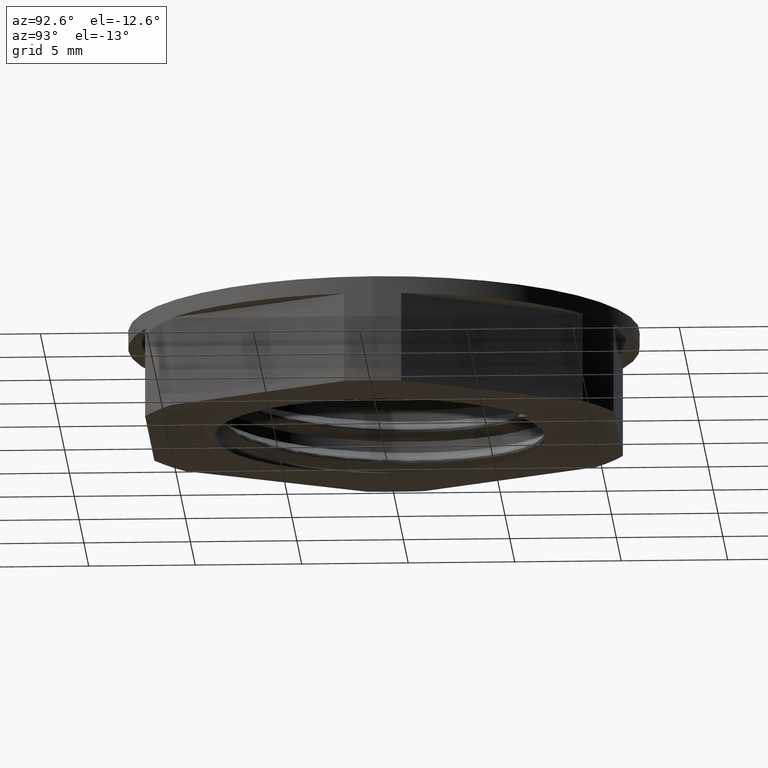
[diagram: clean part render]
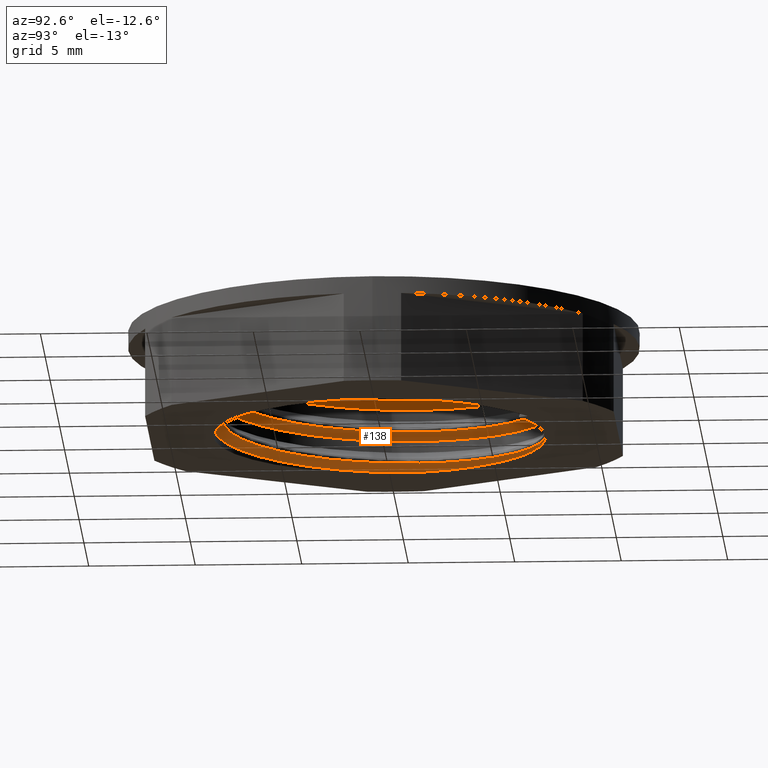
[diagram: same view with one face highlighted and labeled with its STEP entity id]
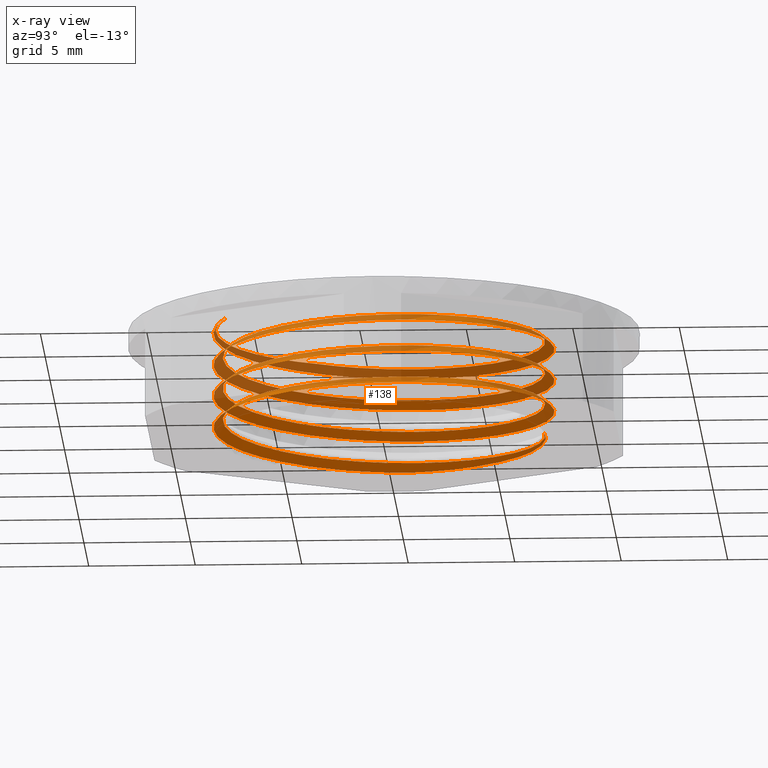
[diagram: x-ray of the same camera — body ghosted, the highlighted face saturated]
A machine part, auxiliary view. The second image highlights one B-rep face of the part: STEP entity #138.
The next image is the same camera in x-ray: the body ghosted, the highlighted face saturated — about 49% of this face is hidden behind the body in this view.
In plain terms, the highlighted face is a freeform B-spline surface patch.
Its self-contained STEP definition (entity closure, byte-faithful):
#138 = ADVANCED_FACE ( 'NONE', ( #2408 ), #2512, .F. ) ;
#157 = EDGE_CURVE ( 'NONE', #2510, #1493, #2534, .T. ) ;
#167 = EDGE_CURVE ( 'NONE', #2504, #2501, #2532, .T. ) ;
#177 = EDGE_CURVE ( 'NONE', #1521, #1501, #2528, .T. ) ;
#178 = EDGE_CURVE ( 'NONE', #2501, #2510, #2540, .T. ) ;
#182 = EDGE_CURVE ( 'NONE', #1519, #2504, #2515, .T. ) ;
#183 = EDGE_CURVE ( 'NONE', #1516, #1519, #2525, .T. ) ;
#195 = EDGE_CURVE ( 'NONE', #1503, #1494, #262, .T. ) ;
#206 = EDGE_CURVE ( 'NONE', #1493, #1521, #2530, .T. ) ;
#233 = EDGE_CURVE ( 'NONE', #1501, #1494, #2518, .T. ) ;
#239 = EDGE_CURVE ( 'NONE', #1516, #1500, #266, .T. ) ;
#247 = EDGE_CURVE ( 'NONE', #1503, #1500, #2529, .T. ) ;
#262 = B_SPLINE_CURVE_WITH_KNOTS ( 'NONE', 3,
 ( #574, #558, #559, #554, #553, #569, #543, #538, #577, #568, #571, #561, #560, #557, #547, #552, #545, #536, #563, #565, #564, #572 ),
 .UNSPECIFIED., .F., .F.,
 ( 4, 2, 2, 2, 2, 2, 2, 2, 2, 2, 4 ),
 ( 2.168404344971008900E-019, 0.001496155060673636600, 0.002244232591010455500, 0.002992310121347274000, 0.004488465182020910100, 0.005984620242694546300, 0.006732697773031366500, 0.007480775303368185000, 0.008976930364041822000, 0.01047308542471545700, 0.01196924048538909600 ),
 .UNSPECIFIED. ) ;
#266 = B_SPLINE_CURVE_WITH_KNOTS ( 'NONE', 3,
 ( #697, #761, #780, #763, #764, #774, #747, #726, #727, #728, #819, #818, #795, #834, #809, #811, #796, #830, #797, #789, #793, #815, #831, #835 ),
 .UNSPECIFIED., .F., .F.,
 ( 4, 2, 2, 2, 2, 2, 2, 2, 2, 2, 2, 4 ),
 ( 0.007449147005863418000, 0.008945742665780616000, 0.009694040495739214600, 0.01044233832569781500, 0.01193893398561501200, 0.01343552964553220900, 0.01493212530544940500, 0.01568042313540800300, 0.01642872096536660300, 0.01792531662528380100, 0.01867361445524240100, 0.01942191228520099800 ),
 .UNSPECIFIED. ) ;
#343 = CARTESIAN_POINT ( 'NONE',  ( 7.999999999999998200, -7.631494539278074400E-015, 3.772517976318679800 ) ) ;
#346 = CARTESIAN_POINT ( 'NONE',  ( 7.999999999999998200, -2.143593539448982900, 3.707437213536682700 ) ) ;
#391 = CARTESIAN_POINT ( 'NONE',  ( -7.999999999999998200, 3.366835826152092000E-015, 3.022517976318681600 ) ) ;
#396 = CARTESIAN_POINT ( 'NONE',  ( 6.928203230275508800, -4.000000000000000000, 3.646791597187232900 ) ) ;
#397 = CARTESIAN_POINT ( 'NONE',  ( 5.271348980783127300, -6.869755740857204500, 3.553041597187232900 ) ) ;
#402 = CARTESIAN_POINT ( 'NONE',  ( -6.869755740857203600, -5.271348980783130900, 3.178041597187232900 ) ) ;
#405 = CARTESIAN_POINT ( 'NONE',  ( -1.130244259142797500, -8.585057479767890200, 3.365541597187232900 ) ) ;
#407 = CARTESIAN_POINT ( 'NONE',  ( -7.727406610312546500, -2.070552360820167200, 3.084291597187233800 ) ) ;
#413 = CARTESIAN_POINT ( 'NONE',  ( -8.000000000000000000, -1.053219980699168000, 3.054494355450129400 ) ) ;
#416 = CARTESIAN_POINT ( 'NONE',  ( -3.999999999999999100, -6.928203230275508800, 3.271791597187233300 ) ) ;
#422 = CARTESIAN_POINT ( 'NONE',  ( -7.999999999999998200, 3.366835826152092000E-015, 3.022517976318681600 ) ) ;
#423 = CARTESIAN_POINT ( 'NONE',  ( 2.070552360820166800, -7.727406610312546500, 3.459291597187233300 ) ) ;
#435 = CARTESIAN_POINT ( 'NONE',  ( 3.380397377103104600, -7.250718141872256200, 5.000000000000000900 ) ) ;
#436 = CARTESIAN_POINT ( 'NONE',  ( 6.869755740857205400, 5.271348980783125500, 3.928041597187232900 ) ) ;
#437 = CARTESIAN_POINT ( 'NONE',  ( -1.130244259142797500, -8.585057479767890200, 0.3655415971872375000 ) ) ;
#438 = CARTESIAN_POINT ( 'NONE',  ( -8.000000000000001800, -1.053219980699163600, 0.05449435545013322400 ) ) ;
#440 = CARTESIAN_POINT ( 'NONE',  ( -6.928203230275509700, 3.999999999999998200, 4.396791597187231600 ) ) ;
#441 = CARTESIAN_POINT ( 'NONE',  ( 8.000000000000001800, -5.611393043586822200E-016, 0.7725179763186846800 ) ) ;
#444 = CARTESIAN_POINT ( 'NONE',  ( 2.070552360820166800, -7.727406610312546500, 0.4592915971872373900 ) ) ;
#445 = CARTESIAN_POINT ( 'NONE',  ( -3.999999999999999100, -6.928203230275508800, 0.2717915971872376700 ) ) ;
#446 = CARTESIAN_POINT ( 'NONE',  ( -6.869755740857203600, -5.271348980783130900, 0.1780415971872377800 ) ) ;
#448 = CARTESIAN_POINT ( 'NONE',  ( 8.000000000000000000, 1.053219980699168000, 2.304494355450130700 ) ) ;
#449 = CARTESIAN_POINT ( 'NONE',  ( 6.869755740857205400, 5.271348980783125500, 2.428041597187234200 ) ) ;
#450 = CARTESIAN_POINT ( 'NONE',  ( 6.928203230275508800, -4.000000000000000000, 0.6467915971872371100 ) ) ;
#452 = CARTESIAN_POINT ( 'NONE',  ( 3.999999999999998200, 6.928203230275509700, 2.521791597187234200 ) ) ;
#453 = CARTESIAN_POINT ( 'NONE',  ( 7.727406610312546500, 2.070552360820165900, 2.334291597187235100 ) ) ;
#454 = CARTESIAN_POINT ( 'NONE',  ( 8.000000000000000000, -2.143593539448979300, 0.7074372135366873100 ) ) ;
#455 = CARTESIAN_POINT ( 'NONE',  ( -5.271348980783130900, 6.869755740857202800, 2.803041597187233800 ) ) ;
#460 = CARTESIAN_POINT ( 'NONE',  ( -8.000000000000000000, 2.143593539448979800, 2.957437213536684400 ) ) ;
#461 = CARTESIAN_POINT ( 'NONE',  ( 5.271348980783127300, -6.869755740857204500, 0.5530415971872372200 ) ) ;
#467 = CARTESIAN_POINT ( 'NONE',  ( -7.999999999999998200, -1.571190052204309300E-015, 4.522517976318679800 ) ) ;
#468 = CARTESIAN_POINT ( 'NONE',  ( -2.070552360820167200, 7.727406610312546500, 4.209291597187232400 ) ) ;
#474 = CARTESIAN_POINT ( 'NONE',  ( -8.000000000000000000, 2.143593539448979800, 4.457437213536682200 ) ) ;
#476 = CARTESIAN_POINT ( 'NONE',  ( -7.727406610312546500, -2.070552360820167200, 0.08429159718723790200 ) ) ;
#477 = CARTESIAN_POINT ( 'NONE',  ( -5.271348980783130900, 6.869755740857202800, 4.303041597187232400 ) ) ;
#478 = CARTESIAN_POINT ( 'NONE',  ( 7.999999999999998200, 1.795645773947782100E-015, 2.272517976318682900 ) ) ;
#479 = CARTESIAN_POINT ( 'NONE',  ( 1.130244259142794100, 8.585057479767888500, 4.115541597187233300 ) ) ;
#480 = CARTESIAN_POINT ( 'NONE',  ( 7.727406610312546500, 2.070552360820165900, 3.834291597187232000 ) ) ;
#481 = CARTESIAN_POINT ( 'NONE',  ( 1.130244259142794100, 8.585057479767888500, 2.615541597187234200 ) ) ;
#482 = CARTESIAN_POINT ( 'NONE',  ( -6.928203230275509700, 3.999999999999998200, 2.896791597187233800 ) ) ;
#483 = CARTESIAN_POINT ( 'NONE',  ( -2.070552360820167200, 7.727406610312546500, 2.709291597187234700 ) ) ;
#485 = CARTESIAN_POINT ( 'NONE',  ( -8.000000000000001800, 1.010050747845627900E-015, 0.02251797631868561800 ) ) ;
#486 = CARTESIAN_POINT ( 'NONE',  ( 3.999999999999998200, 6.928203230275509700, 4.021791597187232400 ) ) ;
#500 = CARTESIAN_POINT ( 'NONE',  ( 2.746318199655144900, -7.546335699524175500, 4.979084497178331700 ) ) ;
#508 = CARTESIAN_POINT ( 'NONE',  ( 8.000000000000001800, 1.053219980699163600, 3.804494355450127600 ) ) ;
#509 = CARTESIAN_POINT ( 'NONE',  ( -7.999999999999998200, -1.571190052204309300E-015, 4.522517976318679800 ) ) ;
#517 = CARTESIAN_POINT ( 'NONE',  ( -1.130244259142797500, -8.585057479767890200, 4.865541597187232400 ) ) ;
#522 = CARTESIAN_POINT ( 'NONE',  ( -6.869755740857203600, -5.271348980783130900, 4.678041597187231600 ) ) ;
#523 = CARTESIAN_POINT ( 'NONE',  ( 7.999999999999998200, -7.631494539278074400E-015, 3.772517976318679800 ) ) ;
#524 = CARTESIAN_POINT ( 'NONE',  ( -8.000000000000000000, -1.053219980699168000, 4.554494355450127200 ) ) ;
#529 = CARTESIAN_POINT ( 'NONE',  ( -7.727406610312546500, -2.070552360820167200, 4.584291597187230700 ) ) ;
#530 = CARTESIAN_POINT ( 'NONE',  ( -3.999999999999999100, -6.928203230275508800, 4.771791597187231600 ) ) ;
#532 = CARTESIAN_POINT ( 'NONE',  ( 2.070552360820166800, -7.727406610312546500, 4.959291597187231600 ) ) ;
#536 = CARTESIAN_POINT ( 'NONE',  ( -7.283014948492168900, 3.124800871535717800, 1.127400515843926400E-014 ) ) ;
#538 = CARTESIAN_POINT ( 'NONE',  ( -3.003853177334058000, 7.098275823220528300, 3.862811491854184300E-018 ) ) ;
#543 = CARTESIAN_POINT ( 'NONE',  ( -2.293219016427007900, 7.318002226821902500, 3.862811491854158900E-018 ) ) ;
#545 = CARTESIAN_POINT ( 'NONE',  ( -6.804143251527945000, 3.995388682104982400, 1.127400515843927200E-014 ) ) ;
#547 = CARTESIAN_POINT ( 'NONE',  ( -6.047141742188511400, 4.981976319172869900, 3.636604634013293300E-017 ) ) ;
#552 = CARTESIAN_POINT ( 'NONE',  ( -6.525865857771565400, 4.405759385610811500, 3.636604634013366600E-017 ) ) ;
#553 = CARTESIAN_POINT ( 'NONE',  ( -1.563137871701153000, 7.480903411029371100, -1.059273437301605100E-016 ) ) ;
#554 = CARTESIAN_POINT ( 'NONE',  ( -1.313767306003189100, 7.519419386386485500, 5.186773145984986800E-018 ) ) ;
#557 = CARTESIAN_POINT ( 'NONE',  ( -5.876671654762140500, 5.168041631374149100, -3.358860403868636900E-016 ) ) ;
#558 = CARTESIAN_POINT ( 'NONE',  ( -0.06890114016801685000, 7.599007192534878100, -2.747084396898558700E-015 ) ) ;
#559 = CARTESIAN_POINT ( 'NONE',  ( -0.5678109952904520900, 7.596782043444950000, 5.186773145985150100E-018 ) ) ;
#560 = CARTESIAN_POINT ( 'NONE',  ( -5.522193639116971500, 5.519238664571912700, -3.358860403868635900E-016 ) ) ;
#561 = CARTESIAN_POINT ( 'NONE',  ( -5.337497578335818300, 5.685327971127282600, -5.488339656673960100E-016 ) ) ;
#563 = CARTESIAN_POINT ( 'NONE',  ( -7.484432842580131900, 2.660268892600717200, 2.235741482730175900E-015 ) ) ;
#564 = CARTESIAN_POINT ( 'NONE',  ( -7.901946618155189800, 1.231718332958290100, 2.112524390960294600E-017 ) ) ;
#565 = CARTESIAN_POINT ( 'NONE',  ( -7.792663550340240200, 1.715191947250777900, 2.235741482730164400E-015 ) ) ;
#568 = CARTESIAN_POINT ( 'NONE',  ( -4.347669749951560200, 6.432504493744768400, 3.420771519155539300E-017 ) ) ;
#569 = CARTESIAN_POINT ( 'NONE',  ( -2.052536911971464500, 7.380128703295911300, -1.059273437301605200E-016 ) ) ;
#571 = CARTESIAN_POINT ( 'NONE',  ( -4.761470099540506600, 6.155618970242478800, -5.488339656673953200E-016 ) ) ;
#572 = CARTESIAN_POINT ( 'NONE',  ( -7.965960808858826100, 0.7372030871647475800, 2.112524390960568500E-017 ) ) ;
#574 = CARTESIAN_POINT ( 'NONE',  ( 0.4316424328562513700, 7.551019650600586000, -2.743567003304576900E-015 ) ) ;
#577 = CARTESIAN_POINT ( 'NONE',  ( -3.462358938085114500, 6.907229153375300100, 3.420771519155516500E-017 ) ) ;
#585 = CARTESIAN_POINT ( 'NONE',  ( -5.271348980783130900, 6.869755740857202800, 1.303041597187236000 ) ) ;
#588 = CARTESIAN_POINT ( 'NONE',  ( 6.869755740857205400, 5.271348980783125500, 0.9280415971872367800 ) ) ;
#590 = CARTESIAN_POINT ( 'NONE',  ( -2.070552360820167200, 7.727406610312546500, 1.209291597187236200 ) ) ;
#591 = CARTESIAN_POINT ( 'NONE',  ( -6.928203230275509700, 3.999999999999998200, 1.396791597187236000 ) ) ;
#599 = CARTESIAN_POINT ( 'NONE',  ( -7.999999999999998200, -1.571190052204309300E-015, 1.522517976318683600 ) ) ;
#601 = CARTESIAN_POINT ( 'NONE',  ( 3.999999999999998200, 6.928203230275509700, 1.021791597187236400 ) ) ;
#602 = CARTESIAN_POINT ( 'NONE',  ( 7.727406610312546500, 2.070552360820165900, 0.8342915971872370000 ) ) ;
#604 = CARTESIAN_POINT ( 'NONE',  ( 8.000000000000000000, 1.053219980699168000, 0.8044943554501324800 ) ) ;
#617 = CARTESIAN_POINT ( 'NONE',  ( 1.130244259142794100, 8.585057479767888500, 1.115541597187236400 ) ) ;
#621 = CARTESIAN_POINT ( 'NONE',  ( -8.000000000000000000, 2.143593539448979800, 1.457437213536686600 ) ) ;
#623 = CARTESIAN_POINT ( 'NONE',  ( 8.000000000000001800, -5.611393043586822200E-016, 0.7725179763186846800 ) ) ;
#697 = CARTESIAN_POINT ( 'NONE',  ( 3.380397377103104600, -7.250718141872256200, 5.000000000000000900 ) ) ;
#710 = CARTESIAN_POINT ( 'NONE',  ( -8.000000000000000000, 0.3693873965947360700, 0.01130315732897119900 ) ) ;
#718 = CARTESIAN_POINT ( 'NONE',  ( -7.965960808858826100, 0.7372030871647475800, 2.112524390960568500E-017 ) ) ;
#724 = CARTESIAN_POINT ( 'NONE',  ( -8.000000000000001800, 1.010050747845627900E-015, 0.02251797631868561800 ) ) ;
#726 = CARTESIAN_POINT ( 'NONE',  ( -0.02113457311991283700, -7.892987881900662500, 5.000000000000001800 ) ) ;
#727 = CARTESIAN_POINT ( 'NONE',  ( -0.5154500681739552200, -7.857649201061852800, 4.999999999999999100 ) ) ;
#728 = CARTESIAN_POINT ( 'NONE',  ( -1.493976001695340700, -7.693989080043779800, 4.999999999999998200 ) ) ;
#747 = CARTESIAN_POINT ( 'NONE',  ( 0.7280813151640759300, -7.874751120325229600, 5.000000000000000000 ) ) ;
#761 = CARTESIAN_POINT ( 'NONE',  ( 2.918137280282340700, -7.446508930559772000, 4.999999999999998200 ) ) ;
#763 = CARTESIAN_POINT ( 'NONE',  ( 1.719162260954199200, -7.755258668475802300, 4.999999999999998200 ) ) ;
#764 = CARTESIAN_POINT ( 'NONE',  ( 1.474511388444287300, -7.796752592532356200, 5.000000000000001800 ) ) ;
#774 = CARTESIAN_POINT ( 'NONE',  ( 0.9796416312068494400, -7.856513744303824400, 5.000000000000001800 ) ) ;
#780 = CARTESIAN_POINT ( 'NONE',  ( 2.444923655188406800, -7.596607600565005400, 5.000000000000000000 ) ) ;
#789 = CARTESIAN_POINT ( 'NONE',  ( -6.120665605493872600, -4.531189356865803000, 5.000000000000001800 ) ) ;
#793 = CARTESIAN_POINT ( 'NONE',  ( -6.259245378709978900, -4.320789143092509800, 5.000000000000000000 ) ) ;
#795 = CARTESIAN_POINT ( 'NONE',  ( -3.361175542009774600, -6.999415194475302500, 5.000000000000000000 ) ) ;
#796 = CARTESIAN_POINT ( 'NONE',  ( -4.798652972574292800, -6.009647844926909100, 4.999999999999998200 ) ) ;
#797 = CARTESIAN_POINT ( 'NONE',  ( -5.677123663725812900, -5.137178216354779900, 5.000000000000000900 ) ) ;
#809 = CARTESIAN_POINT ( 'NONE',  ( -4.207540638302366400, -6.469891748706196200, 4.999999999999999100 ) ) ;
#811 = CARTESIAN_POINT ( 'NONE',  ( -4.607519098872729500, -6.168893023760262800, 4.999999999999997300 ) ) ;
#815 = CARTESIAN_POINT ( 'NONE',  ( -6.513753732184320600, -3.889360533429889100, 5.000000000000000000 ) ) ;
#818 = CARTESIAN_POINT ( 'NONE',  ( -2.915433473454930500, -7.215728835449159100, 5.000000000000000000 ) ) ;
#819 = CARTESIAN_POINT ( 'NONE',  ( -1.983051722891422200, -7.563351686247499700, 5.000000000000000000 ) ) ;
#830 = CARTESIAN_POINT ( 'NONE',  ( -5.346239580676456900, -5.506416625567496200, 5.000000000000000900 ) ) ;
#831 = CARTESIAN_POINT ( 'NONE',  ( -6.630305831619591700, -3.667516089799856900, 5.000000000000003600 ) ) ;
#834 = CARTESIAN_POINT ( 'NONE',  ( -3.999061223344074100, -6.611078732909906100, 5.000000000000000900 ) ) ;
#835 = CARTESIAN_POINT ( 'NONE',  ( -6.736039356138998200, -3.439474777657888000, 5.000000000000000000 ) ) ;
#897 = CARTESIAN_POINT ( 'NONE',  ( 6.494793031637767600, 4.983629974513345200, 7.294437239629096400 ) ) ;
#898 = CARTESIAN_POINT ( 'NONE',  ( 2.138009371283960300, -7.979159600690128900, 0.2405938094024579200 ) ) ;
#899 = CARTESIAN_POINT ( 'NONE',  ( -5.443085494229302800, 7.093567122623539900, 1.084343809402457100 ) ) ;
#900 = CARTESIAN_POINT ( 'NONE',  ( 5.443085494229298300, -7.093567122623540800, 3.334343809402453600 ) ) ;
#901 = CARTESIAN_POINT ( 'NONE',  ( 4.130316937142458400, 7.153918786493011200, 3.803093809402452700 ) ) ;
#902 = CARTESIAN_POINT ( 'NONE',  ( 5.443085494229298300, -7.093567122623540800, 1.834343809402455300 ) ) ;
#903 = CARTESIAN_POINT ( 'NONE',  ( 1.167066751661378900, 8.864752078756719600, 2.396843809402454500 ) ) ;
#904 = CARTESIAN_POINT ( 'NONE',  ( 1.167066751661378900, 8.864752078756719600, 3.896843809402453100 ) ) ;
#905 = CARTESIAN_POINT ( 'NONE',  ( -2.138009371283960700, 7.979159600690128900, -0.5094061905975410000 ) ) ;
#906 = CARTESIAN_POINT ( 'NONE',  ( -8.864752078756719600, 1.167066751661379500, 2.771843809402454500 ) ) ;
#907 = CARTESIAN_POINT ( 'NONE',  ( 4.130316937142458400, 7.153918786493011200, 0.8030938094024571100 ) ) ;
#908 = CARTESIAN_POINT ( 'NONE',  ( -2.138009371283960700, 7.979159600690128900, 3.990593809402452700 ) ) ;
#909 = CARTESIAN_POINT ( 'NONE',  ( -2.138009371283960700, 7.979159600690128900, 2.490593809402454900 ) ) ;
#910 = CARTESIAN_POINT ( 'NONE',  ( -4.130316937142459300, -7.153918786493010300, 1.553093809402456000 ) ) ;
#911 = CARTESIAN_POINT ( 'NONE',  ( 3.781673338404516000, 6.550050359745237700, 7.388187239629095500 ) ) ;
#912 = CARTESIAN_POINT ( 'NONE',  ( 4.130316937142458400, 7.153918786493011200, 2.303093809402454900 ) ) ;
#913 = CARTESIAN_POINT ( 'NONE',  ( -7.153918786493011200, 4.130316937142459300, 4.178093809402452200 ) ) ;
#914 = CARTESIAN_POINT ( 'NONE',  ( 4.130316937142458400, 7.153918786493011200, -0.6969061905975407800 ) ) ;
#915 = CARTESIAN_POINT ( 'NONE',  ( 1.167066751661378900, 8.864752078756719600, -0.6031561905975408900 ) ) ;
#916 = CARTESIAN_POINT ( 'NONE',  ( 7.093567122623541700, 5.443085494229297400, 3.709343809402453100 ) ) ;
#917 = CARTESIAN_POINT ( 'NONE',  ( -4.130316937142459300, -7.153918786493010300, 0.05309380940245818400 ) ) ;
#918 = CARTESIAN_POINT ( 'NONE',  ( -8.864752078756719600, 1.167066751661379500, 1.271843809402456900 ) ) ;
#919 = CARTESIAN_POINT ( 'NONE',  ( -7.979159600690128900, -2.138009371283960700, 1.365593809402456200 ) ) ;
#920 = CARTESIAN_POINT ( 'NONE',  ( 7.979159600690128900, 2.138009371283959400, 2.115593809402455300 ) ) ;
#921 = CARTESIAN_POINT ( 'NONE',  ( 7.153918786493010300, -4.130316937142460200, 3.428093809402453100 ) ) ;
#922 = CARTESIAN_POINT ( 'NONE',  ( -7.153918786493011200, 4.130316937142459300, 2.678093809402454000 ) ) ;
#923 = CARTESIAN_POINT ( 'NONE',  ( -7.979159600690128900, -2.138009371283960700, 2.865593809402454500 ) ) ;
#924 = CARTESIAN_POINT ( 'NONE',  ( -1.167066751661381700, -8.864752078756719600, 3.146843809402453600 ) ) ;
#925 = CARTESIAN_POINT ( 'NONE',  ( 8.864752078756719600, -1.167066751661376200, 3.521843809402453600 ) ) ;
#926 = CARTESIAN_POINT ( 'NONE',  ( 7.979159600690128900, 2.138009371283959400, 3.615593809402452700 ) ) ;
#927 = CARTESIAN_POINT ( 'NONE',  ( -1.167066751661381700, -8.864752078756719600, 0.1468438094024580300 ) ) ;
#928 = CARTESIAN_POINT ( 'NONE',  ( -8.864752078756719600, 1.167066751661379500, 4.271843809402452200 ) ) ;
#929 = CARTESIAN_POINT ( 'NONE',  ( -7.093567122623539900, -5.443085494229302800, 2.959343809402453100 ) ) ;
#930 = CARTESIAN_POINT ( 'NONE',  ( -7.979159600690128900, -2.138009371283960700, 4.365593809402451300 ) ) ;
#931 = CARTESIAN_POINT ( 'NONE',  ( -5.443085494229302800, 7.093567122623539900, 4.084343809402452200 ) ) ;
#932 = CARTESIAN_POINT ( 'NONE',  ( -7.093567122623539900, -5.443085494229302800, 4.459343809402451300 ) ) ;
#933 = CARTESIAN_POINT ( 'NONE',  ( -5.443085494229302800, 7.093567122623539900, -0.4156561905975412200 ) ) ;
#934 = CARTESIAN_POINT ( 'NONE',  ( -1.167066751661381700, -8.864752078756719600, 4.646843809402451300 ) ) ;
#935 = CARTESIAN_POINT ( 'NONE',  ( -4.130316937142459300, -7.153918786493010300, 4.553093809402451300 ) ) ;
#936 = CARTESIAN_POINT ( 'NONE',  ( 2.138009371283960300, -7.979159600690128900, 4.740593809402451300 ) ) ;
#937 = CARTESIAN_POINT ( 'NONE',  ( 5.443085494229298300, -7.093567122623540800, 4.834343809402451300 ) ) ;
#938 = CARTESIAN_POINT ( 'NONE',  ( 7.153918786493010300, -4.130316937142460200, 4.928093809402451300 ) ) ;
#939 = CARTESIAN_POINT ( 'NONE',  ( 8.864752078756719600, -1.167066751661376200, 5.021843809402451300 ) ) ;
#940 = CARTESIAN_POINT ( 'NONE',  ( -7.979159600690128900, -2.138009371283960700, -0.1344061905975415500 ) ) ;
#941 = CARTESIAN_POINT ( 'NONE',  ( 5.443085494229298300, -7.093567122623540800, 0.3343438094024577800 ) ) ;
#942 = CARTESIAN_POINT ( 'NONE',  ( 8.864752078756719600, -1.167066751661376200, 0.5218438094024574500 ) ) ;
#943 = CARTESIAN_POINT ( 'NONE',  ( 7.979159600690128900, 2.138009371283959400, 0.6155938094024573400 ) ) ;
#944 = CARTESIAN_POINT ( 'NONE',  ( -7.093567122623539900, -5.443085494229302800, 1.459343809402456000 ) ) ;
#945 = CARTESIAN_POINT ( 'NONE',  ( 1.167066751661378900, 8.864752078756719600, 0.8968438094024571100 ) ) ;
#946 = CARTESIAN_POINT ( 'NONE',  ( -1.167066751661381700, -8.864752078756719600, 1.646843809402456200 ) ) ;
#947 = CARTESIAN_POINT ( 'NONE',  ( 7.153918786493010300, -4.130316937142460200, 0.4280938094024576700 ) ) ;
#948 = CARTESIAN_POINT ( 'NONE',  ( 7.093567122623541700, 5.443085494229297400, 0.7093438094024572300 ) ) ;
#949 = CARTESIAN_POINT ( 'NONE',  ( 2.138009371283960300, -7.979159600690128900, 1.740593809402455800 ) ) ;
#950 = CARTESIAN_POINT ( 'NONE',  ( 8.864752078756719600, -1.167066751661376200, 2.021843809402455300 ) ) ;
#951 = CARTESIAN_POINT ( 'NONE',  ( -5.443085494229302800, 7.093567122623539900, 2.584343809402454000 ) ) ;
#952 = CARTESIAN_POINT ( 'NONE',  ( -7.153918786493011200, 4.130316937142459300, 1.178093809402456700 ) ) ;
#953 = CARTESIAN_POINT ( 'NONE',  ( 7.153918786493010300, -4.130316937142460200, 1.928093809402455600 ) ) ;
#954 = CARTESIAN_POINT ( 'NONE',  ( -7.153918786493011200, 4.130316937142459300, -0.3219061905975412800 ) ) ;
#955 = CARTESIAN_POINT ( 'NONE',  ( -2.138009371283960700, 7.979159600690128900, 0.9905938094024568900 ) ) ;
#956 = CARTESIAN_POINT ( 'NONE',  ( -7.093567122623539900, -5.443085494229302800, -0.04065619059754167800 ) ) ;
#957 = CARTESIAN_POINT ( 'NONE',  ( 7.093567122623541700, 5.443085494229297400, 2.209343809402454900 ) ) ;
#958 = CARTESIAN_POINT ( 'NONE',  ( -4.130316937142459300, -7.153918786493010300, 3.053093809402453600 ) ) ;
#959 = CARTESIAN_POINT ( 'NONE',  ( -8.864752078756719600, 1.167066751661379500, -0.2281561905975414100 ) ) ;
#960 = CARTESIAN_POINT ( 'NONE',  ( 2.138009371283960300, -7.979159600690128900, 3.240593809402454000 ) ) ;
#962 = CARTESIAN_POINT ( 'NONE',  ( 7.153918786493010300, -4.130316937142460200, 6.428093809402448700 ) ) ;
#967 = CARTESIAN_POINT ( 'NONE',  ( -7.093567122623539900, -5.443085494229302800, 5.959343809402449600 ) ) ;
#970 = CARTESIAN_POINT ( 'NONE',  ( 4.130316937142458400, 7.153918786493011200, 6.803093809402448700 ) ) ;
#971 = CARTESIAN_POINT ( 'NONE',  ( -4.130316937142459300, -7.153918786493010300, 6.053093809402449600 ) ) ;
#973 = CARTESIAN_POINT ( 'NONE',  ( 4.130316937142458400, 7.153918786493011200, 5.303093809402450500 ) ) ;
#974 = CARTESIAN_POINT ( 'NONE',  ( -7.153918786493011200, 4.130316937142459300, 5.678093809402449600 ) ) ;
#975 = CARTESIAN_POINT ( 'NONE',  ( -7.979159600690128900, -2.138009371283960700, 5.865593809402449600 ) ) ;
#976 = CARTESIAN_POINT ( 'NONE',  ( 8.864752078756719600, -1.167066751661376200, 6.521843809402449600 ) ) ;
#979 = CARTESIAN_POINT ( 'NONE',  ( 2.138009371283960300, -7.979159600690128900, 6.240593809402449600 ) ) ;
#984 = CARTESIAN_POINT ( 'NONE',  ( 5.443085494229298300, -7.093567122623540800, 6.334343809402448700 ) ) ;
#985 = CARTESIAN_POINT ( 'NONE',  ( -2.138009371283960700, 7.979159600690128900, 5.490593809402450500 ) ) ;
#989 = CARTESIAN_POINT ( 'NONE',  ( -5.443085494229302800, 7.093567122623539900, 5.584343809402449600 ) ) ;
#990 = CARTESIAN_POINT ( 'NONE',  ( 7.979159600690128900, 2.138009371283959400, 6.615593809402447800 ) ) ;
#997 = CARTESIAN_POINT ( 'NONE',  ( 7.093567122623541700, 5.443085494229297400, 5.209343809402449600 ) ) ;
#998 = CARTESIAN_POINT ( 'NONE',  ( 7.979159600690128900, 2.138009371283959400, 5.115593809402450500 ) ) ;
#999 = CARTESIAN_POINT ( 'NONE',  ( 7.093567122623541700, 5.443085494229297400, 6.709343809402449600 ) ) ;
#1007 = CARTESIAN_POINT ( 'NONE',  ( -1.167066751661381700, -8.864752078756719600, 6.146843809402449600 ) ) ;
#1009 = CARTESIAN_POINT ( 'NONE',  ( -8.864752078756719600, 1.167066751661379500, 5.771843809402449600 ) ) ;
#1013 = CARTESIAN_POINT ( 'NONE',  ( 1.167066751661378900, 8.864752078756719600, 5.396843809402450500 ) ) ;
#1072 = CARTESIAN_POINT ( 'NONE',  ( -1.130244259142797500, -8.585057479767890200, 1.865541597187235800 ) ) ;
#1073 = CARTESIAN_POINT ( 'NONE',  ( -6.869755740857203600, -5.271348980783130900, 1.678041597187235600 ) ) ;
#1074 = CARTESIAN_POINT ( 'NONE',  ( -8.000000000000000000, -1.053219980699168000, 1.554494355450131100 ) ) ;
#1076 = CARTESIAN_POINT ( 'NONE',  ( 6.928203230275508800, -4.000000000000000000, 2.146791597187234700 ) ) ;
#1077 = CARTESIAN_POINT ( 'NONE',  ( 2.070552360820166800, -7.727406610312546500, 1.959291597187235100 ) ) ;
#1078 = CARTESIAN_POINT ( 'NONE',  ( -7.999999999999998200, -1.571190052204309300E-015, 1.522517976318683600 ) ) ;
#1087 = CARTESIAN_POINT ( 'NONE',  ( 5.271348980783127300, -6.869755740857204500, 2.053041597187234700 ) ) ;
#1089 = CARTESIAN_POINT ( 'NONE',  ( -3.999999999999999100, -6.928203230275508800, 1.771791597187235600 ) ) ;
#1097 = CARTESIAN_POINT ( 'NONE',  ( -7.727406610312546500, -2.070552360820167200, 1.584291597187235800 ) ) ;
#1102 = CARTESIAN_POINT ( 'NONE',  ( 7.999999999999998200, 1.795645773947782100E-015, 2.272517976318682900 ) ) ;
#1108 = CARTESIAN_POINT ( 'NONE',  ( 8.000000000000000000, -2.143593539448979300, 2.207437213536684900 ) ) ;
#1493 = VERTEX_POINT ( 'NONE', #2561 ) ;
#1494 = VERTEX_POINT ( 'NONE', #2562 ) ;
#1500 = VERTEX_POINT ( 'NONE', #2587 ) ;
#1501 = VERTEX_POINT ( 'NONE', #2592 ) ;
#1503 = VERTEX_POINT ( 'NONE', #2577 ) ;
#1516 = VERTEX_POINT ( 'NONE', #2616 ) ;
#1519 = VERTEX_POINT ( 'NONE', #2647 ) ;
#1521 = VERTEX_POINT ( 'NONE', #2643 ) ;
#1540 = ORIENTED_EDGE ( 'NONE', *, *, #233, .T. ) ;
#1556 = ORIENTED_EDGE ( 'NONE', *, *, #206, .T. ) ;
#1582 = ORIENTED_EDGE ( 'NONE', *, *, #157, .T. ) ;
#1591 = ORIENTED_EDGE ( 'NONE', *, *, #182, .T. ) ;
#1603 = ORIENTED_EDGE ( 'NONE', *, *, #178, .T. ) ;
#1609 = ORIENTED_EDGE ( 'NONE', *, *, #195, .F. ) ;
#1611 = ORIENTED_EDGE ( 'NONE', *, *, #183, .T. ) ;
#1612 = ORIENTED_EDGE ( 'NONE', *, *, #167, .T. ) ;
#1640 = ORIENTED_EDGE ( 'NONE', *, *, #247, .T. ) ;
#1659 = ORIENTED_EDGE ( 'NONE', *, *, #177, .T. ) ;
#1660 = ORIENTED_EDGE ( 'NONE', *, *, #239, .F. ) ;
#1732 = EDGE_LOOP ( 'NONE', ( #1660, #1611, #1591, #1612, #1603, #1582, #1556, #1659, #1540, #1609, #1640 ) ) ;
#1771 = CARTESIAN_POINT ( 'NONE',  ( 8.116470744977126700, -1.068553645171266100, 7.106937239629097300 ) ) ;
#2063 = CARTESIAN_POINT ( 'NONE',  ( 7.305631888307445400, 1.957538164671038600, 7.200687239629095500 ) ) ;
#2401 = CARTESIAN_POINT ( 'NONE',  ( 4.983629974513347000, -6.494793031637767600, 0.9194372396291044000 ) ) ;
#2402 = CARTESIAN_POINT ( 'NONE',  ( 6.550050359745236900, -3.781673338404517400, 1.013187239629104400 ) ) ;
#2404 = CARTESIAN_POINT ( 'NONE',  ( 8.116470744977126700, -1.068553645171266100, 1.106937239629104400 ) ) ;
#2408 = FACE_OUTER_BOUND ( 'NONE', #1732, .T. ) ;
#2409 = CARTESIAN_POINT ( 'NONE',  ( -1.957538164671039900, 7.305631888307444500, 0.07568723962910557700 ) ) ;
#2410 = CARTESIAN_POINT ( 'NONE',  ( 7.305631888307445400, 1.957538164671038600, 1.200687239629104200 ) ) ;
#2411 = CARTESIAN_POINT ( 'NONE',  ( 6.494793031637767600, 4.983629974513345200, 1.294437239629103700 ) ) ;
#2414 = CARTESIAN_POINT ( 'NONE',  ( 3.781673338404516000, 6.550050359745237700, -0.1118127603708941600 ) ) ;
#2416 = CARTESIAN_POINT ( 'NONE',  ( -6.550050359745237700, 3.781673338404516500, 0.2631872396291052900 ) ) ;
#2417 = CARTESIAN_POINT ( 'NONE',  ( -1.068553645171270100, -8.116470744977128500, 0.7319372396291046200 ) ) ;
#2421 = CARTESIAN_POINT ( 'NONE',  ( -7.305631888307444500, -1.957538164671039900, 0.4506872396291050600 ) ) ;
#2422 = CARTESIAN_POINT ( 'NONE',  ( -3.781673338404516900, -6.550050359745236900, 0.6381872396291047300 ) ) ;
#2424 = CARTESIAN_POINT ( 'NONE',  ( 1.957538164671039500, -7.305631888307446300, 0.8256872396291045100 ) ) ;
#2427 = CARTESIAN_POINT ( 'NONE',  ( 1.068553645171268300, 8.116470744977126700, -0.01806276037089429200 ) ) ;
#2431 = CARTESIAN_POINT ( 'NONE',  ( -8.116470744977126700, 1.068553645171268300, 0.3569372396291051200 ) ) ;
#2433 = CARTESIAN_POINT ( 'NONE',  ( -4.983629974513348800, 6.494793031637764900, 0.1694372396291054200 ) ) ;
#2434 = CARTESIAN_POINT ( 'NONE',  ( -6.494793031637766700, -4.983629974513348800, 0.5444372396291048400 ) ) ;
#2436 = CARTESIAN_POINT ( 'NONE',  ( 4.983629974513347000, -6.494793031637767600, 5.419437239629098200 ) ) ;
#2437 = CARTESIAN_POINT ( 'NONE',  ( -7.305631888307444500, -1.957538164671039900, 6.450687239629096400 ) ) ;
#2438 = CARTESIAN_POINT ( 'NONE',  ( -1.957538164671039900, 7.305631888307444500, 6.075687239629097300 ) ) ;
#2439 = CARTESIAN_POINT ( 'NONE',  ( -6.494793031637766700, -4.983629974513348800, 6.544437239629097300 ) ) ;
#2440 = CARTESIAN_POINT ( 'NONE',  ( -1.068553645171270100, -8.116470744977128500, 2.231937239629103100 ) ) ;
#2441 = CARTESIAN_POINT ( 'NONE',  ( -3.781673338404516900, -6.550050359745236900, 6.638187239629096400 ) ) ;
#2442 = CARTESIAN_POINT ( 'NONE',  ( -1.068553645171270100, -8.116470744977128500, 3.731937239629101300 ) ) ;
#2443 = CARTESIAN_POINT ( 'NONE',  ( 1.068553645171268300, 8.116470744977126700, 4.481937239629100000 ) ) ;
#2444 = CARTESIAN_POINT ( 'NONE',  ( 1.957538164671039500, -7.305631888307446300, 2.325687239629102600 ) ) ;
#2445 = CARTESIAN_POINT ( 'NONE',  ( -4.983629974513348800, 6.494793031637764900, 1.669437239629103300 ) ) ;
#2446 = CARTESIAN_POINT ( 'NONE',  ( 3.781673338404516000, 6.550050359745237700, 2.888187239629101700 ) ) ;
#2447 = CARTESIAN_POINT ( 'NONE',  ( 1.068553645171268300, 8.116470744977126700, 2.981937239629101700 ) ) ;
#2448 = CARTESIAN_POINT ( 'NONE',  ( -6.494793031637766700, -4.983629974513348800, 2.044437239629102600 ) ) ;
#2449 = CARTESIAN_POINT ( 'NONE',  ( -8.116470744977126700, 1.068553645171268300, 3.356937239629100800 ) ) ;
#2450 = CARTESIAN_POINT ( 'NONE',  ( 6.550050359745236900, -3.781673338404517400, 4.013187239629100000 ) ) ;
#2451 = CARTESIAN_POINT ( 'NONE',  ( 8.116470744977126700, -1.068553645171266100, 4.106937239629100000 ) ) ;
#2452 = CARTESIAN_POINT ( 'NONE',  ( -1.957538164671039900, 7.305631888307444500, 4.575687239629100000 ) ) ;
#2453 = CARTESIAN_POINT ( 'NONE',  ( 8.116470744977126700, -1.068553645171266100, 2.606937239629102200 ) ) ;
#2454 = CARTESIAN_POINT ( 'NONE',  ( -7.305631888307444500, -1.957538164671039900, 3.450687239629100800 ) ) ;
#2455 = CARTESIAN_POINT ( 'NONE',  ( -6.550050359745237700, 3.781673338404516500, 1.763187239629103300 ) ) ;
#2456 = CARTESIAN_POINT ( 'NONE',  ( -7.305631888307444500, -1.957538164671039900, 1.950687239629103100 ) ) ;
#2457 = CARTESIAN_POINT ( 'NONE',  ( -6.494793031637766700, -4.983629974513348800, 3.544437239629100800 ) ) ;
#2458 = CARTESIAN_POINT ( 'NONE',  ( 6.494793031637767600, 4.983629974513345200, 4.294437239629100000 ) ) ;
#2459 = CARTESIAN_POINT ( 'NONE',  ( -6.550050359745237700, 3.781673338404516500, 3.263187239629101300 ) ) ;
#2460 = CARTESIAN_POINT ( 'NONE',  ( -6.550050359745237700, 3.781673338404516500, 4.763187239629099100 ) ) ;
#2461 = CARTESIAN_POINT ( 'NONE',  ( -7.305631888307444500, -1.957538164671039900, 4.950687239629098200 ) ) ;
#2462 = CARTESIAN_POINT ( 'NONE',  ( -3.781673338404516900, -6.550050359745236900, 5.138187239629098200 ) ) ;
#2463 = CARTESIAN_POINT ( 'NONE',  ( 1.068553645171268300, 8.116470744977126700, 1.481937239629103300 ) ) ;
#2464 = CARTESIAN_POINT ( 'NONE',  ( -1.068553645171270100, -8.116470744977128500, 5.231937239629098200 ) ) ;
#2465 = CARTESIAN_POINT ( 'NONE',  ( 6.550050359745236900, -3.781673338404517400, 5.513187239629098200 ) ) ;
#2466 = CARTESIAN_POINT ( 'NONE',  ( -1.957538164671039900, 7.305631888307444500, 3.075687239629101300 ) ) ;
#2467 = CARTESIAN_POINT ( 'NONE',  ( 7.305631888307445400, 1.957538164671038600, 2.700687239629101700 ) ) ;
#2468 = CARTESIAN_POINT ( 'NONE',  ( 7.305631888307445400, 1.957538164671038600, 5.700687239629097300 ) ) ;
#2469 = CARTESIAN_POINT ( 'NONE',  ( 6.494793031637767600, 4.983629974513345200, 5.794437239629096400 ) ) ;
#2470 = CARTESIAN_POINT ( 'NONE',  ( 3.781673338404516000, 6.550050359745237700, 5.888187239629097300 ) ) ;
#2471 = CARTESIAN_POINT ( 'NONE',  ( 1.068553645171268300, 8.116470744977126700, 5.981937239629097300 ) ) ;
#2472 = CARTESIAN_POINT ( 'NONE',  ( 1.957538164671039500, -7.305631888307446300, 3.825687239629100800 ) ) ;
#2473 = CARTESIAN_POINT ( 'NONE',  ( -8.116470744977126700, 1.068553645171268300, 4.856937239629099100 ) ) ;
#2474 = CARTESIAN_POINT ( 'NONE',  ( -6.550050359745237700, 3.781673338404516500, 6.263187239629097300 ) ) ;
#2475 = CARTESIAN_POINT ( 'NONE',  ( -1.957538164671039900, 7.305631888307444500, 1.575687239629103500 ) ) ;
#2476 = CARTESIAN_POINT ( 'NONE',  ( 7.305631888307445400, 1.957538164671038600, 4.200687239629099100 ) ) ;
#2477 = CARTESIAN_POINT ( 'NONE',  ( -8.116470744977126700, 1.068553645171268300, 6.356937239629096400 ) ) ;
#2478 = CARTESIAN_POINT ( 'NONE',  ( 3.781673338404516000, 6.550050359745237700, 1.388187239629103700 ) ) ;
#2479 = CARTESIAN_POINT ( 'NONE',  ( 4.983629974513347000, -6.494793031637767600, 2.419437239629102200 ) ) ;
#2480 = CARTESIAN_POINT ( 'NONE',  ( -8.116470744977126700, 1.068553645171268300, 1.856937239629103300 ) ) ;
#2481 = CARTESIAN_POINT ( 'NONE',  ( 6.550050359745236900, -3.781673338404517400, 2.513187239629102200 ) ) ;
#2482 = CARTESIAN_POINT ( 'NONE',  ( -4.983629974513348800, 6.494793031637764900, 3.169437239629100800 ) ) ;
#2483 = CARTESIAN_POINT ( 'NONE',  ( -3.781673338404516900, -6.550050359745236900, 2.138187239629102600 ) ) ;
#2484 = CARTESIAN_POINT ( 'NONE',  ( -3.781673338404516900, -6.550050359745236900, 3.638187239629100400 ) ) ;
#2485 = CARTESIAN_POINT ( 'NONE',  ( 3.781673338404516000, 6.550050359745237700, 4.388187239629100000 ) ) ;
#2486 = CARTESIAN_POINT ( 'NONE',  ( -4.983629974513348800, 6.494793031637764900, 4.669437239629098200 ) ) ;
#2487 = CARTESIAN_POINT ( 'NONE',  ( -6.494793031637766700, -4.983629974513348800, 5.044437239629098200 ) ) ;
#2488 = CARTESIAN_POINT ( 'NONE',  ( 1.957538164671039500, -7.305631888307446300, 5.325687239629099100 ) ) ;
#2489 = CARTESIAN_POINT ( 'NONE',  ( 4.983629974513347000, -6.494793031637767600, 3.919437239629100000 ) ) ;
#2490 = CARTESIAN_POINT ( 'NONE',  ( 8.116470744977126700, -1.068553645171266100, 5.606937239629098200 ) ) ;
#2491 = CARTESIAN_POINT ( 'NONE',  ( -4.983629974513348800, 6.494793031637764900, 6.169437239629096400 ) ) ;
#2492 = CARTESIAN_POINT ( 'NONE',  ( 6.494793031637767600, 4.983629974513345200, 2.794437239629101700 ) ) ;
#2493 = CARTESIAN_POINT ( 'NONE',  ( -1.068553645171270100, -8.116470744977128500, 6.731937239629096400 ) ) ;
#2494 = CARTESIAN_POINT ( 'NONE',  ( 4.983629974513347000, -6.494793031637767600, 6.919437239629096400 ) ) ;
#2495 = CARTESIAN_POINT ( 'NONE',  ( 6.550050359745236900, -3.781673338404517400, 7.013187239629095500 ) ) ;
#2496 = CARTESIAN_POINT ( 'NONE',  ( 1.957538164671039500, -7.305631888307446300, 6.825687239629096400 ) ) ;
#2501 = VERTEX_POINT ( 'NONE', #2609 ) ;
#2504 = VERTEX_POINT ( 'NONE', #2620 ) ;
#2510 = VERTEX_POINT ( 'NONE', #2651 ) ;
#2512 =( BOUNDED_SURFACE ( )  B_SPLINE_SURFACE ( 1, 2, ( 
 ( #2414, #2427, #2409, #2433, #2416, #2431, #2421, #2434, #2422, #2417, #2424, #2401, #2402, #2404, #2410, #2411, #2478, #2463, #2475, #2445, #2455, #2480, #2456, #2448, #2483, #2440, #2444, #2479, #2481, #2453, #2467, #2492, #2446, #2447, #2466, #2482, #2459, #2449, #2454, #2457, #2484, #2442, #2472, #2489, #2450, #2451, #2476, #2458, #2485, #2443, #2452, #2486, #2460, #2473, #2461, #2487, #2462, #2464, #2488, #2436, #2465, #2490, #2468, #2469, #2470, #2471, #2438, #2491, #2474, #2477, #2437, #2439, #2441, #2493, #2496, #2494, #2495, #1771, #2063, #897, #911 ),
 ( #914, #915, #905, #933, #954, #959, #940, #956, #917, #927, #898, #941, #947, #942, #943, #948, #907, #945, #955, #899, #952, #918, #919, #944, #910, #946, #949, #902, #953, #950, #920, #957, #912, #903, #909, #951, #922, #906, #923, #929, #958, #924, #960, #900, #921, #925, #926, #916, #901, #904, #908, #931, #913, #928, #930, #932, #935, #934, #936, #937, #938, #939, #998, #997, #973, #1013, #985, #989, #974, #1009, #975, #967, #971, #1007, #979, #984, #962, #976, #990, #999, #970 ) ),
 .UNSPECIFIED., .F., .F., .T. ) 
 B_SPLINE_SURFACE_WITH_KNOTS ( ( 2, 2 ),
 ( 3, 2, 2, 2, 2, 2, 2, 2, 2, 2, 2, 2, 2, 2, 2, 2, 2, 2, 2, 2, 2, 2, 2, 2, 2, 2, 2, 2, 2, 2, 2, 2, 2, 2, 2, 2, 2, 2, 2, 2, 3 ),
 ( 0.0000000000000000000, 1.000000000000000000 ),
 ( 0.0000000000000000000, 0.02500000000000000100, 0.05000000000000000300, 0.07499999999999999700, 0.1000000000000000100, 0.1250000000000000000, 0.1499999999999999900, 0.1749999999999999900, 0.2000000000000000100, 0.2250000000000000100, 0.2500000000000000000, 0.2750000000000000200, 0.2999999999999999900, 0.3250000000000000100, 0.3499999999999999800, 0.3750000000000000000, 0.4000000000000000200, 0.4249999999999999900, 0.4500000000000000100, 0.4749999999999999800, 0.5000000000000000000, 0.5250000000000000200, 0.5500000000000000400, 0.5749999999999999600, 0.5999999999999999800, 0.6250000000000000000, 0.6500000000000000200, 0.6750000000000000400, 0.6999999999999999600, 0.7249999999999999800, 0.7500000000000000000, 0.7750000000000000200, 0.8000000000000000400, 0.8249999999999999600, 0.8499999999999999800, 0.8750000000000000000, 0.9000000000000000200, 0.9250000000000000400, 0.9499999999999999600, 0.9749999999999999800, 1.000000000000000000 ),
 .UNSPECIFIED. ) 
 GEOMETRIC_REPRESENTATION_ITEM ( )  RATIONAL_B_SPLINE_SURFACE ( (
 ( 1.000000000000000000, 0.9238795325112867400, 1.000000000000000000, 0.9238795325112867400, 1.000000000000000000, 0.9238795325112867400, 1.000000000000000000, 0.9238795325112867400, 1.000000000000000000, 0.9238795325112867400, 1.000000000000000000, 0.9238795325112867400, 1.000000000000000000, 0.9238795325112867400, 1.000000000000000000, 0.9238795325112867400, 1.000000000000000000, 0.9238795325112867400, 1.000000000000000000, 0.9238795325112867400, 1.000000000000000000, 0.9238795325112867400, 1.000000000000000000, 0.9238795325112867400, 1.000000000000000000, 0.9238795325112867400, 1.000000000000000000, 0.9238795325112867400, 1.000000000000000000, 0.9238795325112867400, 1.000000000000000000, 0.9238795325112867400, 1.000000000000000000, 0.9238795325112867400, 1.000000000000000000, 0.9238795325112867400, 1.000000000000000000, 0.9238795325112867400, 1.000000000000000000, 0.9238795325112867400, 1.000000000000000000, 0.9238795325112867400, 1.000000000000000000, 0.9238795325112867400, 1.000000000000000000, 0.9238795325112867400, 1.000000000000000000, 0.9238795325112867400, 1.000000000000000000, 0.9238795325112867400, 1.000000000000000000, 0.9238795325112867400, 1.000000000000000000, 0.9238795325112867400, 1.000000000000000000, 0.9238795325112867400, 1.000000000000000000, 0.9238795325112867400, 1.000000000000000000, 0.9238795325112867400, 1.000000000000000000, 0.9238795325112867400, 1.000000000000000000, 0.9238795325112867400, 1.000000000000000000, 0.9238795325112867400, 1.000000000000000000, 0.9238795325112867400, 1.000000000000000000, 0.9238795325112867400, 1.000000000000000000, 0.9238795325112867400, 1.000000000000000000, 0.9238795325112867400, 1.000000000000000000, 0.9238795325112867400, 1.000000000000000000, 0.9238795325112867400, 1.000000000000000000, 0.9238795325112867400, 1.000000000000000000),
 ( 1.000000000000000000, 0.9238795325112867400, 1.000000000000000000, 0.9238795325112867400, 1.000000000000000000, 0.9238795325112867400, 1.000000000000000000, 0.9238795325112867400, 1.000000000000000000, 0.9238795325112867400, 1.000000000000000000, 0.9238795325112867400, 1.000000000000000000, 0.9238795325112867400, 1.000000000000000000, 0.9238795325112867400, 1.000000000000000000, 0.9238795325112867400, 1.000000000000000000, 0.9238795325112867400, 1.000000000000000000, 0.9238795325112867400, 1.000000000000000000, 0.9238795325112867400, 1.000000000000000000, 0.9238795325112867400, 1.000000000000000000, 0.9238795325112867400, 1.000000000000000000, 0.9238795325112867400, 1.000000000000000000, 0.9238795325112867400, 1.000000000000000000, 0.9238795325112867400, 1.000000000000000000, 0.9238795325112867400, 1.000000000000000000, 0.9238795325112867400, 1.000000000000000000, 0.9238795325112867400, 1.000000000000000000, 0.9238795325112867400, 1.000000000000000000, 0.9238795325112867400, 1.000000000000000000, 0.9238795325112867400, 1.000000000000000000, 0.9238795325112867400, 1.000000000000000000, 0.9238795325112867400, 1.000000000000000000, 0.9238795325112867400, 1.000000000000000000, 0.9238795325112867400, 1.000000000000000000, 0.9238795325112867400, 1.000000000000000000, 0.9238795325112867400, 1.000000000000000000, 0.9238795325112867400, 1.000000000000000000, 0.9238795325112867400, 1.000000000000000000, 0.9238795325112867400, 1.000000000000000000, 0.9238795325112867400, 1.000000000000000000, 0.9238795325112867400, 1.000000000000000000, 0.9238795325112867400, 1.000000000000000000, 0.9238795325112867400, 1.000000000000000000, 0.9238795325112867400, 1.000000000000000000, 0.9238795325112867400, 1.000000000000000000, 0.9238795325112867400, 1.000000000000000000, 0.9238795325112867400, 1.000000000000000000) ) ) 
 REPRESENTATION_ITEM ( '' )  SURFACE ( )  );
#2515 =( BOUNDED_CURVE ( )  B_SPLINE_CURVE ( 2, ( #467, #474, #440, #477, #468, #479, #486, #436, #480, #508, #523 ),
 .UNSPECIFIED., .F., .T. ) 
 B_SPLINE_CURVE_WITH_KNOTS ( ( 3, 2, 2, 2, 2, 3 ),
 ( 0.3333811345117283500, 0.3499999999999999800, 0.3750000000000000000, 0.4000000000000000200, 0.4250000000000000400, 0.4333811345117284400 ),
 .UNSPECIFIED. ) 
 CURVE ( )  GEOMETRIC_REPRESENTATION_ITEM ( )  RATIONAL_B_SPLINE_CURVE ( ( 0.9660722070828948700, 0.9493985675960288100, 1.000000000000000000, 0.9238795325112867400, 1.000000000000000000, 0.9238795325112867400, 1.000000000000000000, 0.9238795325112867400, 1.000000000000000000, 0.9744809649152578200, 0.9660722070828948700 ) ) 
 REPRESENTATION_ITEM ( '' )  );
#2518 =( BOUNDED_CURVE ( )  B_SPLINE_CURVE ( 2, ( #724, #710, #718 ),
 .UNSPECIFIED., .F., .T. ) 
 B_SPLINE_CURVE_WITH_KNOTS ( ( 3, 3 ),
 ( 0.9333811345117284400, 0.9362864257423819700 ),
 .UNSPECIFIED. ) 
 CURVE ( )  GEOMETRIC_REPRESENTATION_ITEM ( )  RATIONAL_B_SPLINE_CURVE ( ( 0.9660722070828948700, 0.9631573403238820100, 0.9622985098344675200 ) ) 
 REPRESENTATION_ITEM ( '' )  );
#2525 =( BOUNDED_CURVE ( )  B_SPLINE_CURVE ( 2, ( #435, #500, #532, #517, #530, #522, #529, #524, #509 ),
 .UNSPECIFIED., .F., .T. ) 
 B_SPLINE_CURVE_WITH_KNOTS ( ( 3, 2, 2, 2, 3 ),
 ( 0.2693846966754827600, 0.2750000000000000200, 0.3000000000000000400, 0.3249999999999999600, 0.3333811345117283500 ),
 .UNSPECIFIED. ) 
 CURVE ( )  GEOMETRIC_REPRESENTATION_ITEM ( )  RATIONAL_B_SPLINE_CURVE ( ( 0.9734854869472796500, 0.9829024194338728000, 1.000000000000000000, 0.9238795325112867400, 1.000000000000000000, 0.9238795325112867400, 1.000000000000000000, 0.9744809649152578200, 0.9660722070828948700 ) ) 
 REPRESENTATION_ITEM ( '' )  );
#2528 =( BOUNDED_CURVE ( )  B_SPLINE_CURVE ( 2, ( #441, #454, #450, #461, #444, #437, #445, #446, #476, #438, #485 ),
 .UNSPECIFIED., .F., .T. ) 
 B_SPLINE_CURVE_WITH_KNOTS ( ( 3, 2, 2, 2, 2, 3 ),
 ( 0.8333811345117283500, 0.8499999999999999800, 0.8750000000000000000, 0.9000000000000000200, 0.9250000000000000400, 0.9333811345117284400 ),
 .UNSPECIFIED. ) 
 CURVE ( )  GEOMETRIC_REPRESENTATION_ITEM ( )  RATIONAL_B_SPLINE_CURVE ( ( 0.9660722070828948700, 0.9493985675960288100, 1.000000000000000000, 0.9238795325112867400, 1.000000000000000000, 0.9238795325112867400, 1.000000000000000000, 0.9238795325112867400, 1.000000000000000000, 0.9744809649152578200, 0.9660722070828948700 ) ) 
 REPRESENTATION_ITEM ( '' )  );
#2529 =( BOUNDED_CURVE ( )  B_SPLINE_CURVE ( 2, ( #2692, #2693, #2695, #2699, #2700, #2708, #2710, #2711, #2712, #2714, #2713, #2715, #2717, #2719, #2721, #2723, #2599, #2578, #2597, #2583, #2595, #2579, #2551, #2593, #2547, #2563, #2558, #2571, #2552, #2541, #2553, #2554, #2590, #2542, #2600, #2560, #2601, #2582, #2589, #2581, #2584, #2557, #2573, #2602, #2550, #2555, #2568, #2556, #2543, #2549, #2588, #2564, #2545, #2565, #2570, #2598, #2566 ),
 .UNSPECIFIED., .F., .T. ) 
 B_SPLINE_CURVE_WITH_KNOTS ( ( 3, 2, 2, 2, 2, 2, 2, 2, 2, 2, 2, 2, 2, 2, 2, 2, 2, 2, 2, 2, 2, 2, 2, 2, 2, 2, 2, 2, 3 ),
 ( 0.01481986217350467200, 0.02500000000000000100, 0.05000000000000000300, 0.07499999999999998300, 0.1000000000000000100, 0.1250000000000000000, 0.1499999999999999900, 0.1749999999999999900, 0.2000000000000000100, 0.2250000000000000100, 0.2500000000000000000, 0.2750000000000000200, 0.2999999999999999900, 0.3250000000000000100, 0.3499999999999999800, 0.3750000000000000000, 0.4000000000000000800, 0.4249999999999999900, 0.4500000000000000100, 0.4749999999999999800, 0.5000000000000000000, 0.5250000000000001300, 0.5500000000000000400, 0.5749999999999999600, 0.6000000000000000900, 0.6250000000000000000, 0.6500000000000001300, 0.6750000000000000400, 0.6817528709401881000 ),
 .UNSPECIFIED. ) 
 CURVE ( )  GEOMETRIC_REPRESENTATION_ITEM ( )  RATIONAL_B_SPLINE_CURVE ( ( 0.9632506850571831400, 0.9690033259819057500, 1.000000000000000000, 0.9238795325112867400, 1.000000000000000000, 0.9238795325112867400, 1.000000000000000000, 0.9238795325112867400, 1.000000000000000000, 0.9238795325112867400, 1.000000000000000000, 0.9238795325112867400, 1.000000000000000000, 0.9238795325112867400, 1.000000000000000000, 0.9238795325112867400, 1.000000000000000000, 0.9238795325112867400, 1.000000000000000000, 0.9238795325112867400, 1.000000000000000000, 0.9238795325112867400, 1.000000000000000000, 0.9238795325112867400, 1.000000000000000000, 0.9238795325112867400, 1.000000000000000000, 0.9238795325112867400, 1.000000000000000000, 0.9238795325112867400, 1.000000000000000000, 0.9238795325112867400, 1.000000000000000000, 0.9238795325112867400, 1.000000000000000000, 0.9238795325112867400, 1.000000000000000000, 0.9238795325112867400, 1.000000000000000000, 0.9238795325112867400, 1.000000000000000000, 0.9238795325112867400, 1.000000000000000000, 0.9238795325112867400, 1.000000000000000000, 0.9238795325112867400, 1.000000000000000000, 0.9238795325112867400, 1.000000000000000000, 0.9238795325112867400, 1.000000000000000000, 0.9238795325112867400, 1.000000000000000000, 0.9238795325112867400, 1.000000000000000000, 0.9794387322856779000, 0.9699852715506733800 ) ) 
 REPRESENTATION_ITEM ( '' )  );
#2530 =( BOUNDED_CURVE ( )  B_SPLINE_CURVE ( 2, ( #599, #621, #591, #585, #590, #617, #601, #588, #602, #604, #623 ),
 .UNSPECIFIED., .F., .T. ) 
 B_SPLINE_CURVE_WITH_KNOTS ( ( 3, 2, 2, 2, 2, 3 ),
 ( 0.7333811345117283700, 0.7500000000000000000, 0.7750000000000000200, 0.8000000000000000400, 0.8249999999999999600, 0.8333811345117283500 ),
 .UNSPECIFIED. ) 
 CURVE ( )  GEOMETRIC_REPRESENTATION_ITEM ( )  RATIONAL_B_SPLINE_CURVE ( ( 0.9660722070828948700, 0.9493985675960288100, 1.000000000000000000, 0.9238795325112867400, 1.000000000000000000, 0.9238795325112867400, 1.000000000000000000, 0.9238795325112867400, 1.000000000000000000, 0.9744809649152578200, 0.9660722070828948700 ) ) 
 REPRESENTATION_ITEM ( '' )  );
#2532 =( BOUNDED_CURVE ( )  B_SPLINE_CURVE ( 2, ( #343, #346, #396, #397, #423, #405, #416, #402, #407, #413, #391 ),
 .UNSPECIFIED., .F., .T. ) 
 B_SPLINE_CURVE_WITH_KNOTS ( ( 3, 2, 2, 2, 2, 3 ),
 ( 0.4333811345117284400, 0.4499999999999999600, 0.4749999999999999800, 0.5000000000000000000, 0.5250000000000000200, 0.5333811345117284200 ),
 .UNSPECIFIED. ) 
 CURVE ( )  GEOMETRIC_REPRESENTATION_ITEM ( )  RATIONAL_B_SPLINE_CURVE ( ( 0.9660722070828948700, 0.9493985675960290300, 1.000000000000000000, 0.9238795325112867400, 1.000000000000000000, 0.9238795325112867400, 1.000000000000000000, 0.9238795325112867400, 1.000000000000000000, 0.9744809649152578200, 0.9660722070828948700 ) ) 
 REPRESENTATION_ITEM ( '' )  );
#2534 =( BOUNDED_CURVE ( )  B_SPLINE_CURVE ( 2, ( #1102, #1108, #1076, #1087, #1077, #1072, #1089, #1073, #1097, #1074, #1078 ),
 .UNSPECIFIED., .F., .T. ) 
 B_SPLINE_CURVE_WITH_KNOTS ( ( 3, 2, 2, 2, 2, 3 ),
 ( 0.6333811345117283900, 0.6500000000000000200, 0.6750000000000000400, 0.6999999999999999600, 0.7249999999999999800, 0.7333811345117283700 ),
 .UNSPECIFIED. ) 
 CURVE ( )  GEOMETRIC_REPRESENTATION_ITEM ( )  RATIONAL_B_SPLINE_CURVE ( ( 0.9660722070828948700, 0.9493985675960288100, 1.000000000000000000, 0.9238795325112867400, 1.000000000000000000, 0.9238795325112867400, 1.000000000000000000, 0.9238795325112867400, 1.000000000000000000, 0.9744809649152578200, 0.9660722070828948700 ) ) 
 REPRESENTATION_ITEM ( '' )  );
#2540 =( BOUNDED_CURVE ( )  B_SPLINE_CURVE ( 2, ( #422, #460, #482, #455, #483, #481, #452, #449, #453, #448, #478 ),
 .UNSPECIFIED., .F., .T. ) 
 B_SPLINE_CURVE_WITH_KNOTS ( ( 3, 2, 2, 2, 2, 3 ),
 ( 0.5333811345117284200, 0.5500000000000000400, 0.5749999999999999600, 0.5999999999999999800, 0.6250000000000000000, 0.6333811345117283900 ),
 .UNSPECIFIED. ) 
 CURVE ( )  GEOMETRIC_REPRESENTATION_ITEM ( )  RATIONAL_B_SPLINE_CURVE ( ( 0.9660722070828948700, 0.9493985675960288100, 1.000000000000000000, 0.9238795325112867400, 1.000000000000000000, 0.9238795325112867400, 1.000000000000000000, 0.9238795325112867400, 1.000000000000000000, 0.9744809649152578200, 0.9660722070828948700 ) ) 
 REPRESENTATION_ITEM ( '' )  );
#2541 = CARTESIAN_POINT ( 'NONE',  ( 8.116470744977126700, -1.068553645171266100, 2.606937239629102200 ) ) ;
#2542 = CARTESIAN_POINT ( 'NONE',  ( 1.068553645171268100, 8.116470744977126700, 2.981937239629101700 ) ) ;
#2543 = CARTESIAN_POINT ( 'NONE',  ( 3.781673338404516000, 6.550050359745237700, 4.388187239629100000 ) ) ;
#2545 = CARTESIAN_POINT ( 'NONE',  ( -6.550050359745237700, 3.781673338404516500, 4.763187239629099100 ) ) ;
#2547 = CARTESIAN_POINT ( 'NONE',  ( -3.781673338404516900, -6.550050359745236900, 2.138187239629102600 ) ) ;
#2549 = CARTESIAN_POINT ( 'NONE',  ( 1.068553645171268100, 8.116470744977126700, 4.481937239629100000 ) ) ;
#2550 = CARTESIAN_POINT ( 'NONE',  ( 6.550050359745236900, -3.781673338404517400, 4.013187239629100000 ) ) ;
#2551 = CARTESIAN_POINT ( 'NONE',  ( -7.305631888307444500, -1.957538164671039900, 1.950687239629103100 ) ) ;
#2552 = CARTESIAN_POINT ( 'NONE',  ( 6.550050359745236900, -3.781673338404517400, 2.513187239629102200 ) ) ;
#2553 = CARTESIAN_POINT ( 'NONE',  ( 7.305631888307445400, 1.957538164671038600, 2.700687239629101700 ) ) ;
#2554 = CARTESIAN_POINT ( 'NONE',  ( 6.494793031637766700, 4.983629974513345200, 2.794437239629101700 ) ) ;
#2555 = CARTESIAN_POINT ( 'NONE',  ( 8.116470744977126700, -1.068553645171266100, 4.106937239629100000 ) ) ;
#2556 = CARTESIAN_POINT ( 'NONE',  ( 6.494793031637766700, 4.983629974513345200, 4.294437239629099100 ) ) ;
#2557 = CARTESIAN_POINT ( 'NONE',  ( -1.068553645171270100, -8.116470744977128500, 3.731937239629101300 ) ) ;
#2558 = CARTESIAN_POINT ( 'NONE',  ( 1.957538164671039500, -7.305631888307446300, 2.325687239629102600 ) ) ;
#2560 = CARTESIAN_POINT ( 'NONE',  ( -4.983629974513348800, 6.494793031637764900, 3.169437239629100800 ) ) ;
#2561 = CARTESIAN_POINT ( 'NONE',  ( -7.999999999999998200, -1.571190052204309300E-015, 1.522517976318683600 ) ) ;
#2562 = CARTESIAN_POINT ( 'NONE',  ( -7.965960808858826100, 0.7372030871647475800, 2.112524390960568500E-017 ) ) ;
#2563 = CARTESIAN_POINT ( 'NONE',  ( -1.068553645171270100, -8.116470744977128500, 2.231937239629102600 ) ) ;
#2564 = CARTESIAN_POINT ( 'NONE',  ( -4.983629974513348800, 6.494793031637764900, 4.669437239629099100 ) ) ;
#2565 = CARTESIAN_POINT ( 'NONE',  ( -8.116470744977126700, 1.068553645171268100, 4.856937239629099100 ) ) ;
#2566 = CARTESIAN_POINT ( 'NONE',  ( -6.736039356138998200, -3.439474777657888000, 4.999999999999999100 ) ) ;
#2568 = CARTESIAN_POINT ( 'NONE',  ( 7.305631888307445400, 1.957538164671038600, 4.200687239629099100 ) ) ;
#2570 = CARTESIAN_POINT ( 'NONE',  ( -7.305631888307444500, -1.957538164671039900, 4.950687239629098200 ) ) ;
#2571 = CARTESIAN_POINT ( 'NONE',  ( 4.983629974513347000, -6.494793031637766700, 2.419437239629102200 ) ) ;
#2573 = CARTESIAN_POINT ( 'NONE',  ( 1.957538164671039500, -7.305631888307446300, 3.825687239629100800 ) ) ;
#2577 = CARTESIAN_POINT ( 'NONE',  ( 0.4316424328562513700, 7.551019650600586000, -2.743567003304576900E-015 ) ) ;
#2578 = CARTESIAN_POINT ( 'NONE',  ( 1.068553645171268100, 8.116470744977126700, 1.481937239629104000 ) ) ;
#2579 = CARTESIAN_POINT ( 'NONE',  ( -8.116470744977126700, 1.068553645171268100, 1.856937239629103300 ) ) ;
#2581 = CARTESIAN_POINT ( 'NONE',  ( -6.494793031637765800, -4.983629974513348800, 3.544437239629100400 ) ) ;
#2582 = CARTESIAN_POINT ( 'NONE',  ( -8.116470744977126700, 1.068553645171268100, 3.356937239629101300 ) ) ;
#2583 = CARTESIAN_POINT ( 'NONE',  ( -4.983629974513348800, 6.494793031637764900, 1.669437239629103500 ) ) ;
#2584 = CARTESIAN_POINT ( 'NONE',  ( -3.781673338404516900, -6.550050359745236900, 3.638187239629100400 ) ) ;
#2587 = CARTESIAN_POINT ( 'NONE',  ( -6.736039356138998200, -3.439474777657888000, 5.000000000000000000 ) ) ;
#2588 = CARTESIAN_POINT ( 'NONE',  ( -1.957538164671039900, 7.305631888307444500, 4.575687239629100000 ) ) ;
#2589 = CARTESIAN_POINT ( 'NONE',  ( -7.305631888307444500, -1.957538164671039900, 3.450687239629100800 ) ) ;
#2590 = CARTESIAN_POINT ( 'NONE',  ( 3.781673338404516000, 6.550050359745237700, 2.888187239629101700 ) ) ;
#2592 = CARTESIAN_POINT ( 'NONE',  ( -8.000000000000001800, 1.010050747845627900E-015, 0.02251797631868561800 ) ) ;
#2593 = CARTESIAN_POINT ( 'NONE',  ( -6.494793031637765800, -4.983629974513348800, 2.044437239629102600 ) ) ;
#2595 = CARTESIAN_POINT ( 'NONE',  ( -6.550050359745237700, 3.781673338404516500, 1.763187239629103300 ) ) ;
#2597 = CARTESIAN_POINT ( 'NONE',  ( -1.957538164671039900, 7.305631888307444500, 1.575687239629103500 ) ) ;
#2598 = CARTESIAN_POINT ( 'NONE',  ( -7.099036289603862600, -2.728563435652918900, 4.974574029487703400 ) ) ;
#2599 = CARTESIAN_POINT ( 'NONE',  ( 3.781673338404516000, 6.550050359745237700, 1.388187239629103700 ) ) ;
#2600 = CARTESIAN_POINT ( 'NONE',  ( -1.957538164671039900, 7.305631888307444500, 3.075687239629101300 ) ) ;
#2601 = CARTESIAN_POINT ( 'NONE',  ( -6.550050359745237700, 3.781673338404516500, 3.263187239629101300 ) ) ;
#2602 = CARTESIAN_POINT ( 'NONE',  ( 4.983629974513347000, -6.494793031637766700, 3.919437239629100000 ) ) ;
#2609 = CARTESIAN_POINT ( 'NONE',  ( -7.999999999999998200, 3.366835826152092000E-015, 3.022517976318681600 ) ) ;
#2616 = CARTESIAN_POINT ( 'NONE',  ( 3.380397377103104600, -7.250718141872256200, 5.000000000000000900 ) ) ;
#2620 = CARTESIAN_POINT ( 'NONE',  ( 7.999999999999998200, -7.631494539278074400E-015, 3.772517976318679800 ) ) ;
#2643 = CARTESIAN_POINT ( 'NONE',  ( 8.000000000000001800, -5.611393043586822200E-016, 0.7725179763186848000 ) ) ;
#2647 = CARTESIAN_POINT ( 'NONE',  ( -7.999999999999998200, -1.571190052204309300E-015, 4.522517976318679800 ) ) ;
#2651 = CARTESIAN_POINT ( 'NONE',  ( 7.999999999999998200, 1.795645773947782100E-015, 2.272517976318682900 ) ) ;
#2692 = CARTESIAN_POINT ( 'NONE',  ( 0.4316424328562513700, 7.551019650600586000, -2.743567003304576900E-015 ) ) ;
#2693 = CARTESIAN_POINT ( 'NONE',  ( -0.7826789499610930000, 7.620434466109239600, 0.03928945056638809300 ) ) ;
#2695 = CARTESIAN_POINT ( 'NONE',  ( -1.957538164671039900, 7.305631888307444500, 0.07568723962910559000 ) ) ;
#2699 = CARTESIAN_POINT ( 'NONE',  ( -4.983629974513348800, 6.494793031637764900, 0.1694372396291054500 ) ) ;
#2700 = CARTESIAN_POINT ( 'NONE',  ( -6.550050359745237700, 3.781673338404516500, 0.2631872396291052900 ) ) ;
#2708 = CARTESIAN_POINT ( 'NONE',  ( -8.116470744977126700, 1.068553645171268100, 0.3569372396291051700 ) ) ;
#2710 = CARTESIAN_POINT ( 'NONE',  ( -7.305631888307444500, -1.957538164671039900, 0.4506872396291050600 ) ) ;
#2711 = CARTESIAN_POINT ( 'NONE',  ( -6.494793031637765800, -4.983629974513348800, 0.5444372396291049500 ) ) ;
#2712 = CARTESIAN_POINT ( 'NONE',  ( -3.781673338404516900, -6.550050359745236900, 0.6381872396291047300 ) ) ;
#2713 = CARTESIAN_POINT ( 'NONE',  ( 1.957538164671039500, -7.305631888307446300, 0.8256872396291045100 ) ) ;
#2714 = CARTESIAN_POINT ( 'NONE',  ( -1.068553645171270100, -8.116470744977128500, 0.7319372396291045100 ) ) ;
#2715 = CARTESIAN_POINT ( 'NONE',  ( 4.983629974513347000, -6.494793031637766700, 0.9194372396291044000 ) ) ;
#2717 = CARTESIAN_POINT ( 'NONE',  ( 6.550050359745236900, -3.781673338404517400, 1.013187239629104400 ) ) ;
#2719 = CARTESIAN_POINT ( 'NONE',  ( 8.116470744977126700, -1.068553645171266100, 1.106937239629104600 ) ) ;
#2721 = CARTESIAN_POINT ( 'NONE',  ( 7.305631888307445400, 1.957538164671038600, 1.200687239629104200 ) ) ;
#2723 = CARTESIAN_POINT ( 'NONE',  ( 6.494793031637766700, 4.983629974513345200, 1.294437239629104000 ) ) ;